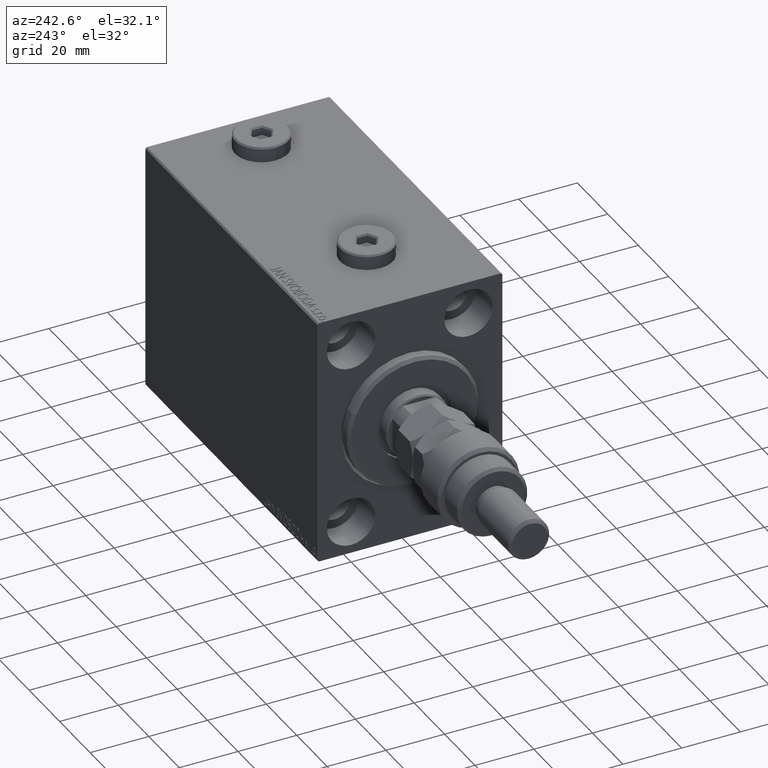
[diagram: clean part render]
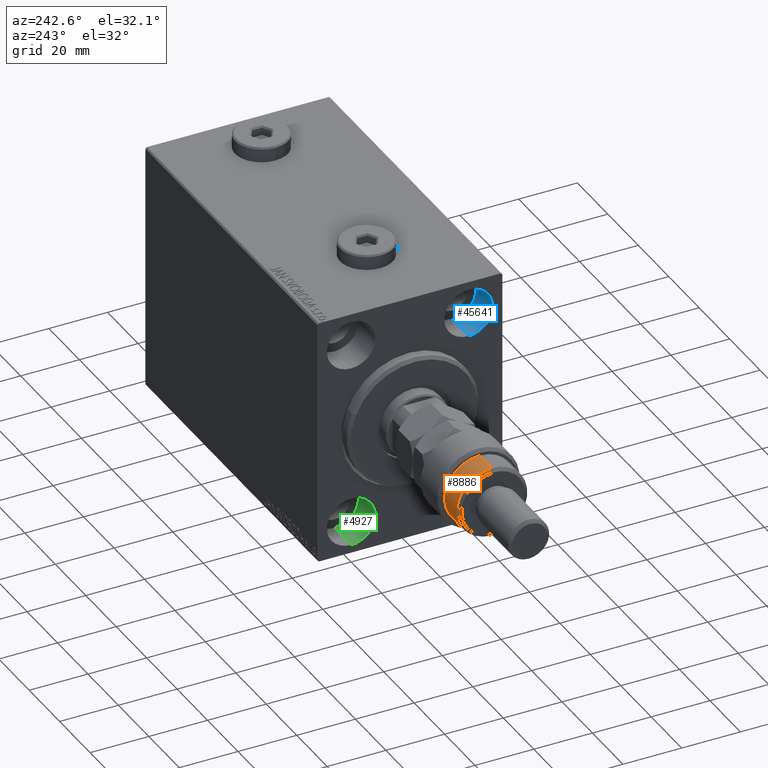
[diagram: same view with three faces highlighted in distinct colors, each labeled with its STEP entity id]
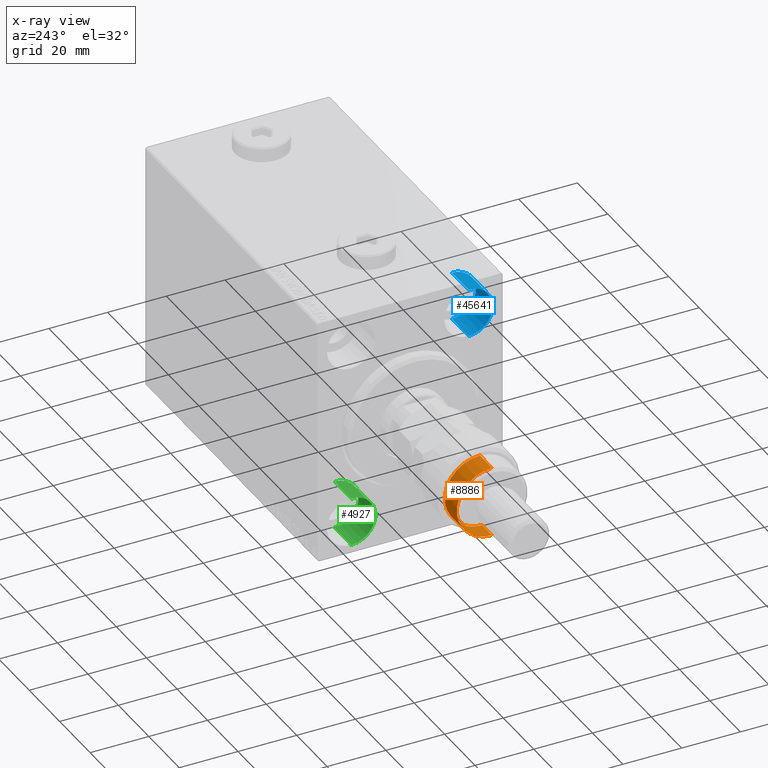
[diagram: x-ray of the same camera — body ghosted, the three highlighted faces saturated]
A machine part, auxiliary view with three faces highlighted in distinct colors.
The next image is the same camera in x-ray (body ghosted, the three faces saturated) — at least one of them is partly hidden behind the body in this view.
Their STEP definitions:

[orange] entity #8886 — the highlighted cylindrical surface (partial cylindrical patch) has radius 12 mm, axis along (1, -0, -0).
#579 = DIRECTION ( 'NONE',  ( 1.000000000000000000, 0.000000000000000000, 0.000000000000000000 ) ) ;
#733 = ORIENTED_EDGE ( 'NONE', *, *, #37856, .T. ) ;
#745 = EDGE_CURVE ( 'NONE', #41875, #9393, #12533, .T. ) ;
#1707 = VERTEX_POINT ( 'NONE', #39827 ) ;
#1819 = ORIENTED_EDGE ( 'NONE', *, *, #36082, .T. ) ;
#4477 = CARTESIAN_POINT ( 'NONE',  ( -10.39230484541326760, 6.000000000000000000, 22.00000000000000000 ) ) ;
#4526 = DIRECTION ( 'NONE',  ( -1.000000000000000000, 0.000000000000000000, 0.000000000000000000 ) ) ;
#5001 = CARTESIAN_POINT ( 'NONE',  ( 0.000000000000000000, 0.000000000000000000, 22.00000000000000000 ) ) ;
#5092 = CARTESIAN_POINT ( 'NONE',  ( -12.00000000000000178, 0.000000000000000000, 14.50000000000000000 ) ) ;
#6249 = DIRECTION ( 'NONE',  ( 1.000000000000000000, 0.000000000000000000, 0.000000000000000000 ) ) ;
#6488 = CARTESIAN_POINT ( 'NONE',  ( 0.000000000000000000, 0.000000000000000000, 20.99999999999999645 ) ) ;
#7689 = DIRECTION ( 'NONE',  ( -0.000000000000000000, -0.000000000000000000, -1.000000000000000000 ) ) ;
#8490 = DIRECTION ( 'NONE',  ( -0.000000000000000000, -0.000000000000000000, -1.000000000000000000 ) ) ;
#8886 = ADVANCED_FACE ( 'NONE', ( #19563 ), #12045, .T. ) ;
#9393 = VERTEX_POINT ( 'NONE', #47176 ) ;
#9409 = ORIENTED_EDGE ( 'NONE', *, *, #46982, .F. ) ;
#10508 = ORIENTED_EDGE ( 'NONE', *, *, #46326, .T. ) ;
#10871 = VECTOR ( 'NONE', #44082, 1000.000000000000000 ) ;
#11762 = DIRECTION ( 'NONE',  ( 0.000000000000000000, 0.000000000000000000, 1.000000000000000000 ) ) ;
#12045 = CYLINDRICAL_SURFACE ( 'NONE', #41287, 12.00000000000000178 ) ;
#12533 = CIRCLE ( 'NONE', #39684, 12.00000000000000178 ) ;
#12797 = VERTEX_POINT ( 'NONE', #22706 ) ;
#12989 = CARTESIAN_POINT ( 'NONE',  ( -10.39230484541326582, 5.999999999999998224, 14.50000000000000000 ) ) ;
#15373 = CARTESIAN_POINT ( 'NONE',  ( 0.000000000000000000, 0.000000000000000000, 13.00000000000000000 ) ) ;
#15449 = CIRCLE ( 'NONE', #21632, 12.00000000000000178 ) ;
#17657 = VECTOR ( 'NONE', #8490, 1000.000000000000000 ) ;
#19304 = CARTESIAN_POINT ( 'NONE',  ( 0.000000000000000000, 0.000000000000000000, 14.50000000000000000 ) ) ;
#19563 = FACE_OUTER_BOUND ( 'NONE', #25731, .T. ) ;
#21465 = AXIS2_PLACEMENT_3D ( 'NONE', #15373, #23607, #579 ) ;
#21632 = AXIS2_PLACEMENT_3D ( 'NONE', #19304, #30502, #45311 ) ;
#22445 = LINE ( 'NONE', #40441, #10871 ) ;
#22706 = CARTESIAN_POINT ( 'NONE',  ( 12.00000000000000178, 1.469576158976824144E-15, 13.00000000000000000 ) ) ;
#22765 = ORIENTED_EDGE ( 'NONE', *, *, #745, .T. ) ;
#23607 = DIRECTION ( 'NONE',  ( 0.000000000000000000, 0.000000000000000000, 1.000000000000000000 ) ) ;
#23880 = LINE ( 'NONE', #4477, #39506 ) ;
#25731 = EDGE_LOOP ( 'NONE', ( #22765, #733, #1819, #10508, #47111, #9409 ) ) ;
#29647 = VERTEX_POINT ( 'NONE', #12989 ) ;
#30502 = DIRECTION ( 'NONE',  ( 0.000000000000000000, 0.000000000000000000, -1.000000000000000000 ) ) ;
#30839 = LINE ( 'NONE', #41761, #17657 ) ;
#35549 = VERTEX_POINT ( 'NONE', #5092 ) ;
#36082 = EDGE_CURVE ( 'NONE', #12797, #1707, #41662, .T. ) ;
#36994 = CARTESIAN_POINT ( 'NONE',  ( -12.00000000000000178, 0.000000000000000000, 20.99999999999999645 ) ) ;
#37856 = EDGE_CURVE ( 'NONE', #9393, #12797, #30839, .T. ) ;
#39506 = VECTOR ( 'NONE', #11762, 1000.000000000000000 ) ;
#39684 = AXIS2_PLACEMENT_3D ( 'NONE', #6488, #47283, #6249 ) ;
#39827 = CARTESIAN_POINT ( 'NONE',  ( -10.39230484541326760, 6.000000000000000000, 13.00000000000000000 ) ) ;
#40441 = CARTESIAN_POINT ( 'NONE',  ( -12.00000000000000178, 0.000000000000000000, 22.00000000000000000 ) ) ;
#41287 = AXIS2_PLACEMENT_3D ( 'NONE', #5001, #7689, #4526 ) ;
#41662 = CIRCLE ( 'NONE', #21465, 12.00000000000000178 ) ;
#41699 = EDGE_CURVE ( 'NONE', #35549, #29647, #15449, .T. ) ;
#41761 = CARTESIAN_POINT ( 'NONE',  ( 12.00000000000000178, 1.469576158976824144E-15, 22.00000000000000000 ) ) ;
#41875 = VERTEX_POINT ( 'NONE', #36994 ) ;
#44082 = DIRECTION ( 'NONE',  ( -0.000000000000000000, -0.000000000000000000, -1.000000000000000000 ) ) ;
#45311 = DIRECTION ( 'NONE',  ( -1.000000000000000000, 0.000000000000000000, 0.000000000000000000 ) ) ;
#46326 = EDGE_CURVE ( 'NONE', #1707, #29647, #23880, .T. ) ;
#46982 = EDGE_CURVE ( 'NONE', #41875, #35549, #22445, .T. ) ;
#47111 = ORIENTED_EDGE ( 'NONE', *, *, #41699, .F. ) ;
#47176 = CARTESIAN_POINT ( 'NONE',  ( 12.00000000000000178, 1.469576158976824144E-15, 20.99999999999999645 ) ) ;
#47283 = DIRECTION ( 'NONE',  ( 0.000000000000000000, 0.000000000000000000, -1.000000000000000000 ) ) ;

[blue] entity #45641 — the highlighted cylindrical surface (edge-blend (fillet) strip) has radius 8.25 mm, axis along (-1, -0, -0).
#1569 = CARTESIAN_POINT ( 'NONE',  ( 11.00000000000000000, -19.99999999999999645, 23.25000000000000355 ) ) ;
#2391 = CIRCLE ( 'NONE', #13236, 8.249999999999992895 ) ;
#2414 = LINE ( 'NONE', #24260, #20646 ) ;
#2597 = CARTESIAN_POINT ( 'NONE',  ( 0.000000000000000000, -19.99999999999999645, 23.25000000000000355 ) ) ;
#3639 = CYLINDRICAL_SURFACE ( 'NONE', #27904, 8.249999999999992895 ) ;
#6953 = VECTOR ( 'NONE', #42710, 1000.000000000000000 ) ;
#7121 = CARTESIAN_POINT ( 'NONE',  ( 11.00000000000000000, -19.99999999999999645, 31.50000000000000000 ) ) ;
#10910 = ORIENTED_EDGE ( 'NONE', *, *, #43633, .F. ) ;
#12347 = CARTESIAN_POINT ( 'NONE',  ( 11.00000000000000000, -19.99999999999999645, 23.25000000000000355 ) ) ;
#12592 = LINE ( 'NONE', #12347, #6953 ) ;
#12662 = ORIENTED_EDGE ( 'NONE', *, *, #47793, .T. ) ;
#13236 = AXIS2_PLACEMENT_3D ( 'NONE', #40449, #25885, #14705 ) ;
#14705 = DIRECTION ( 'NONE',  ( 0.000000000000000000, 0.000000000000000000, 1.000000000000000000 ) ) ;
#14802 = DIRECTION ( 'NONE',  ( -1.000000000000000000, -0.000000000000000000, -0.000000000000000000 ) ) ;
#18097 = ORIENTED_EDGE ( 'NONE', *, *, #45698, .T. ) ;
#19155 = CARTESIAN_POINT ( 'NONE',  ( 0.000000000000000000, -19.99999999999999645, 39.74999999999999289 ) ) ;
#20646 = VECTOR ( 'NONE', #46119, 1000.000000000000000 ) ;
#21985 = VERTEX_POINT ( 'NONE', #24429 ) ;
#22983 = EDGE_CURVE ( 'NONE', #21985, #23788, #2414, .T. ) ;
#23584 = EDGE_LOOP ( 'NONE', ( #10910, #18097, #12662, #43084 ) ) ;
#23788 = VERTEX_POINT ( 'NONE', #19155 ) ;
#23937 = CIRCLE ( 'NONE', #31722, 8.249999999999992895 ) ;
#24260 = CARTESIAN_POINT ( 'NONE',  ( 11.00000000000000000, -19.99999999999999645, 39.74999999999999289 ) ) ;
#24429 = CARTESIAN_POINT ( 'NONE',  ( 11.00000000000000000, -19.99999999999999645, 39.74999999999999289 ) ) ;
#25885 = DIRECTION ( 'NONE',  ( -1.000000000000000000, 0.000000000000000000, 0.000000000000000000 ) ) ;
#25980 = DIRECTION ( 'NONE',  ( 0.000000000000000000, 0.000000000000000000, 1.000000000000000000 ) ) ;
#26831 = VERTEX_POINT ( 'NONE', #1569 ) ;
#27904 = AXIS2_PLACEMENT_3D ( 'NONE', #7121, #14802, #25980 ) ;
#29263 = CARTESIAN_POINT ( 'NONE',  ( 11.00000000000000000, -19.99999999999999645, 31.50000000000000000 ) ) ;
#31722 = AXIS2_PLACEMENT_3D ( 'NONE', #29263, #43119, #36779 ) ;
#36779 = DIRECTION ( 'NONE',  ( 0.000000000000000000, 0.000000000000000000, 1.000000000000000000 ) ) ;
#36900 = FACE_OUTER_BOUND ( 'NONE', #23584, .T. ) ;
#40449 = CARTESIAN_POINT ( 'NONE',  ( 0.000000000000000000, -19.99999999999999645, 31.50000000000000000 ) ) ;
#40575 = VERTEX_POINT ( 'NONE', #2597 ) ;
#42710 = DIRECTION ( 'NONE',  ( -1.000000000000000000, -0.000000000000000000, -0.000000000000000000 ) ) ;
#43084 = ORIENTED_EDGE ( 'NONE', *, *, #22983, .F. ) ;
#43119 = DIRECTION ( 'NONE',  ( -1.000000000000000000, 0.000000000000000000, 0.000000000000000000 ) ) ;
#43633 = EDGE_CURVE ( 'NONE', #26831, #21985, #23937, .T. ) ;
#45641 = ADVANCED_FACE ( 'NONE', ( #36900 ), #3639, .F. ) ;
#45698 = EDGE_CURVE ( 'NONE', #26831, #40575, #12592, .T. ) ;
#46119 = DIRECTION ( 'NONE',  ( -1.000000000000000000, -0.000000000000000000, -0.000000000000000000 ) ) ;
#47793 = EDGE_CURVE ( 'NONE', #40575, #23788, #2391, .T. ) ;

[green] entity #4927 — the highlighted cylindrical surface (edge-blend (fillet) strip) has radius 8.25 mm, axis along (-1, -0, -0).
#2675 = VECTOR ( 'NONE', #11262, 1000.000000000000000 ) ;
#3504 = LINE ( 'NONE', #14669, #2675 ) ;
#4586 = DIRECTION ( 'NONE',  ( -1.000000000000000000, -0.000000000000000000, -0.000000000000000000 ) ) ;
#4592 = CARTESIAN_POINT ( 'NONE',  ( 0.000000000000000000, 19.99999999999999645, -39.74999999999999289 ) ) ;
#4927 = ADVANCED_FACE ( 'NONE', ( #14321 ), #43951, .F. ) ;
#5906 = CARTESIAN_POINT ( 'NONE',  ( 0.000000000000000000, 19.99999999999999645, -31.49999999999999289 ) ) ;
#7725 = EDGE_LOOP ( 'NONE', ( #16670, #12982, #35008, #42761 ) ) ;
#10009 = VECTOR ( 'NONE', #12122, 1000.000000000000000 ) ;
#11262 = DIRECTION ( 'NONE',  ( -1.000000000000000000, -0.000000000000000000, -0.000000000000000000 ) ) ;
#11458 = CARTESIAN_POINT ( 'NONE',  ( 11.00000000000000000, 19.99999999999999645, -23.24999999999999289 ) ) ;
#12122 = DIRECTION ( 'NONE',  ( -1.000000000000000000, -0.000000000000000000, -0.000000000000000000 ) ) ;
#12982 = ORIENTED_EDGE ( 'NONE', *, *, #40246, .T. ) ;
#14321 = FACE_OUTER_BOUND ( 'NONE', #7725, .T. ) ;
#14669 = CARTESIAN_POINT ( 'NONE',  ( 11.00000000000000000, 19.99999999999999645, -23.24999999999999289 ) ) ;
#16670 = ORIENTED_EDGE ( 'NONE', *, *, #43203, .F. ) ;
#17765 = EDGE_CURVE ( 'NONE', #21723, #26718, #3504, .T. ) ;
#17770 = DIRECTION ( 'NONE',  ( -1.000000000000000000, 0.000000000000000000, 0.000000000000000000 ) ) ;
#19057 = EDGE_CURVE ( 'NONE', #23647, #26718, #33717, .T. ) ;
#21723 = VERTEX_POINT ( 'NONE', #11458 ) ;
#21767 = DIRECTION ( 'NONE',  ( -1.000000000000000000, 0.000000000000000000, 0.000000000000000000 ) ) ;
#23647 = VERTEX_POINT ( 'NONE', #4592 ) ;
#25195 = AXIS2_PLACEMENT_3D ( 'NONE', #5906, #17770, #47417 ) ;
#25389 = CARTESIAN_POINT ( 'NONE',  ( 0.000000000000000000, 19.99999999999999645, -23.24999999999999289 ) ) ;
#26718 = VERTEX_POINT ( 'NONE', #25389 ) ;
#32258 = CARTESIAN_POINT ( 'NONE',  ( 11.00000000000000000, 19.99999999999999645, -31.49999999999999289 ) ) ;
#33717 = CIRCLE ( 'NONE', #25195, 8.250000000000000000 ) ;
#34702 = CARTESIAN_POINT ( 'NONE',  ( 11.00000000000000000, 19.99999999999999645, -39.74999999999999289 ) ) ;
#34933 = CARTESIAN_POINT ( 'NONE',  ( 11.00000000000000000, 19.99999999999999645, -31.49999999999999289 ) ) ;
#35008 = ORIENTED_EDGE ( 'NONE', *, *, #19057, .T. ) ;
#35853 = VERTEX_POINT ( 'NONE', #42866 ) ;
#40229 = AXIS2_PLACEMENT_3D ( 'NONE', #32258, #21767, #40491 ) ;
#40246 = EDGE_CURVE ( 'NONE', #35853, #23647, #45402, .T. ) ;
#40491 = DIRECTION ( 'NONE',  ( 0.000000000000000000, 0.000000000000000000, 1.000000000000000000 ) ) ;
#40991 = CIRCLE ( 'NONE', #40229, 8.250000000000000000 ) ;
#41501 = DIRECTION ( 'NONE',  ( 0.000000000000000000, 0.000000000000000000, 1.000000000000000000 ) ) ;
#42761 = ORIENTED_EDGE ( 'NONE', *, *, #17765, .F. ) ;
#42866 = CARTESIAN_POINT ( 'NONE',  ( 11.00000000000000000, 19.99999999999999645, -39.74999999999999289 ) ) ;
#43203 = EDGE_CURVE ( 'NONE', #35853, #21723, #40991, .T. ) ;
#43951 = CYLINDRICAL_SURFACE ( 'NONE', #44266, 8.250000000000000000 ) ;
#44266 = AXIS2_PLACEMENT_3D ( 'NONE', #34933, #4586, #41501 ) ;
#45402 = LINE ( 'NONE', #34702, #10009 ) ;
#47417 = DIRECTION ( 'NONE',  ( 0.000000000000000000, 0.000000000000000000, 1.000000000000000000 ) ) ;